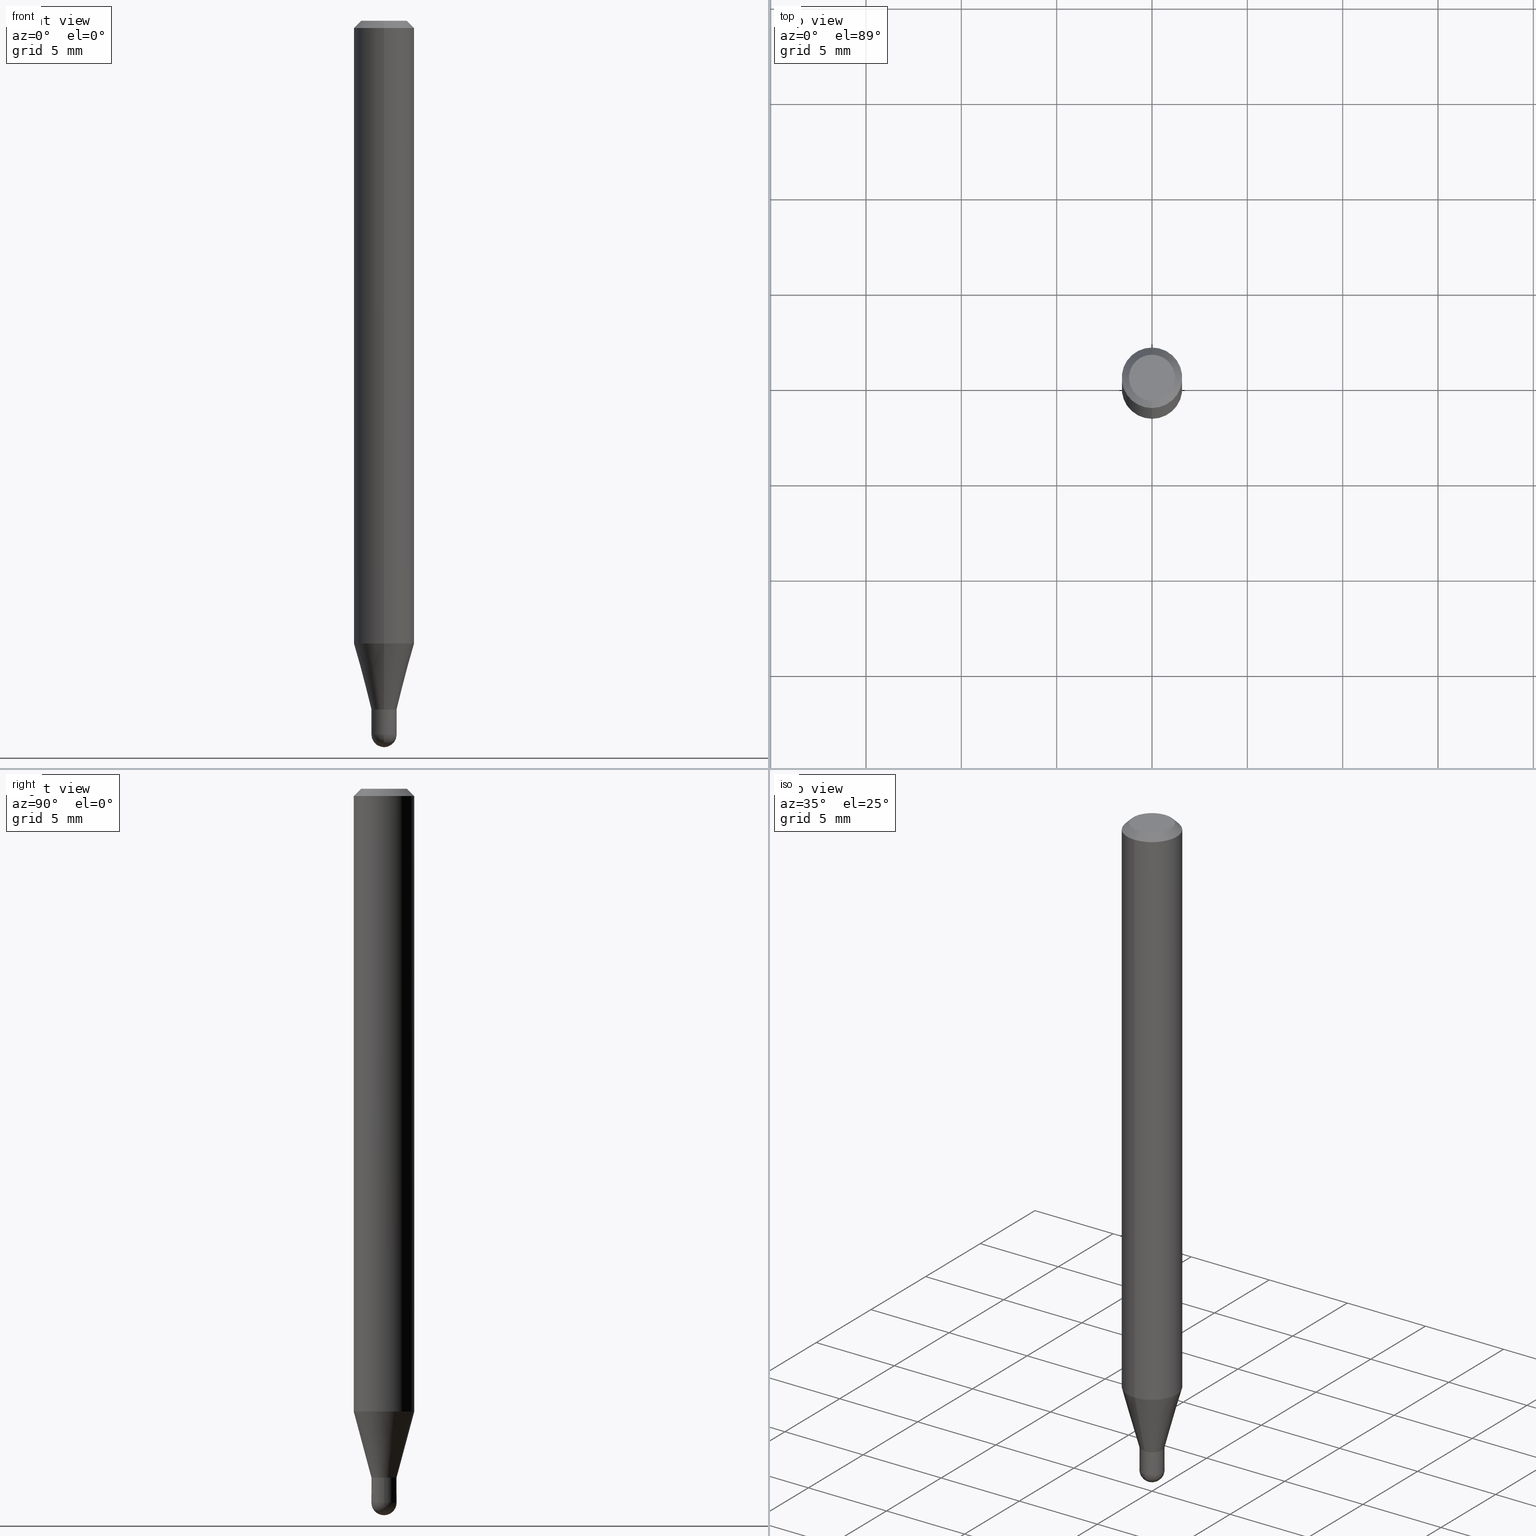
[diagram: canonical four-view strip — front | top / right | iso, engineering-drawing reading convention]
A machine part, canonical four-view strip (front | top / right | iso — engineering-drawing reading convention). The complete STEP part file that produces these views, byte-faithful:
ISO-10303-21;
HEADER;
FILE_DESCRIPTION (( 'STEP AP203' ),
    '1' );
FILE_NAME ('04364.STEP',
    '2024-03-08T18:54:05',
    ( '' ),
    ( '' ),
    'SwSTEP 2.0',
    'SolidWorks 2023',
    '' );
FILE_SCHEMA (( 'CONFIG_CONTROL_DESIGN' ));
ENDSEC;

DATA;
#1 = ORIENTED_EDGE ( 'NONE', *, *, #457, .T. ) ;
#2 = DIRECTION ( 'NONE',  ( -6.982962677686265922E-15, -1.000000000000000000, 0.000000000000000000 ) ) ;
#3 = DIRECTION ( 'NONE',  ( 1.000000000000000000, -6.982962677686258822E-15, 0.000000000000000000 ) ) ;
#4 = EDGE_LOOP ( 'NONE', ( #230, #385, #126, #81 ) ) ;
#5 = CIRCLE ( 'NONE', #405, 0.02600000000000019310 ) ;
#6 = EDGE_CURVE ( 'NONE', #105, #171, #96, .T. ) ;
#7 = VERTEX_POINT ( 'NONE', #259 ) ;
#8 = DIRECTION ( 'NONE',  ( 6.982962677686265922E-15, 1.000000000000000000, -3.483106191921935554E-15 ) ) ;
#9 = ORIENTED_EDGE ( 'NONE', *, *, #204, .F. ) ;
#10 = AXIS2_PLACEMENT_3D ( 'NONE', #379, #412, #192 ) ;
#11 = COORDINATED_UNIVERSAL_TIME_OFFSET ( 5, 0, .BEHIND. ) ;
#12 = VERTEX_POINT ( 'NONE', #66 ) ;
#13 = AXIS2_PLACEMENT_3D ( 'NONE', #509, #469, #164 ) ;
#14 = EDGE_CURVE ( 'NONE', #70, #63, #225, .T. ) ;
#15 = FACE_OUTER_BOUND ( 'NONE', #48, .T. ) ;
#16 = CALENDAR_DATE ( 2024, 8, 3 ) ;
#17 = ORIENTED_EDGE ( 'NONE', *, *, #35, .T. ) ;
#18 = DIRECTION ( 'NONE',  ( -2.445468806185136597E-29, 3.491481338843145583E-15, 1.000000000000000000 ) ) ;
#19 = SPHERICAL_SURFACE ( 'NONE', #481, 0.02599999999999997452 ) ;
#20 = EDGE_CURVE ( 'NONE', #416, #12, #100, .T. ) ;
#21 = LOCAL_TIME ( 13, 54, 5.000000000000000000, #184 ) ;
#22 = CIRCLE ( 'NONE', #226, 0.04749999999999999362 ) ;
#23 = DIRECTION ( 'NONE',  ( -2.445468490087946245E-29, 3.491481791512312778E-15, 1.000000000000000000 ) ) ;
#24 = DIMENSIONAL_EXPONENTS ( 1.000000000000000000, 0.000000000000000000, 0.000000000000000000, 0.000000000000000000, 0.000000000000000000, 0.000000000000000000, 0.000000000000000000 ) ;
#25 = CARTESIAN_POINT ( 'NONE',  ( 3.604621020316892110E-29, -5.146443493454796836E-15, -1.474000000000000199 ) ) ;
#26 = FACE_OUTER_BOUND ( 'NONE', #397, .T. ) ;
#27 = DIRECTION ( 'NONE',  ( 1.000000000000000000, -6.982962677686257244E-15, 0.000000000000000000 ) ) ;
#28 = AXIS2_PLACEMENT_3D ( 'NONE', #104, #216, #417 ) ;
#29 = CARTESIAN_POINT ( 'NONE',  ( -0.02600000000000000228, 1.847411112976260645E-16, -1.278923123466275736E-30 ) ) ;
#30 = CARTESIAN_POINT ( 'NONE',  ( 3.604621020316892110E-29, -5.146443493454796836E-15, -1.474000000000000199 ) ) ;
#31 = ORIENTED_EDGE ( 'NONE', *, *, #294, .T. ) ;
#32 = FACE_OUTER_BOUND ( 'NONE', #451, .T. ) ;
#33 = CIRCLE ( 'NONE', #367, 0.02600000000000000228 ) ;
#34 = DIRECTION ( 'NONE',  ( -6.982962677686265922E-15, -1.000000000000000000, 0.000000000000000000 ) ) ;
#35 = EDGE_CURVE ( 'NONE', #171, #178, #357, .T. ) ;
#36 = CARTESIAN_POINT ( 'NONE',  ( 3.144151605738781381E-16, 0.02599999999999522485, -1.421999999999999931 ) ) ;
#37 =( NAMED_UNIT ( * ) PLANE_ANGLE_UNIT ( ) SI_UNIT ( $, .RADIAN. ) );
#38 = PERSON ( 'UNSPECIFIED', 'UNSPECIFIED', 'UNSPECIFIED', ('UNSPECIFIED'), ('UNSPECIFIED'), ('UNSPECIFIED') ) ;
#39 = EDGE_CURVE ( 'NONE', #105, #350, #495, .T. ) ;
#40 = SECURITY_CLASSIFICATION ( '', '', #287 ) ;
#41 = CARTESIAN_POINT ( 'NONE',  ( 3.477456642395264859E-29, -4.964886463834953365E-15, -1.421999999999999931 ) ) ;
#42 = VECTOR ( 'NONE', #505, 39.37007874015748143 ) ;
#43 = ORIENTED_EDGE ( 'NONE', *, *, #167, .T. ) ;
#44 = CIRCLE ( 'NONE', #101, 0.02600000000000000228 ) ;
#45 = ORIENTED_EDGE ( 'NONE', *, *, #72, .F. ) ;
#46 = DIRECTION ( 'NONE',  ( -1.000000000000000000, 6.982962677686265922E-15, -4.876176775795935793E-29 ) ) ;
#47 = DIRECTION ( 'NONE',  ( 1.000000000000000000, 0.000000000000000000, 0.000000000000000000 ) ) ;
#48 = EDGE_LOOP ( 'NONE', ( #499, #359 ) ) ;
#49 = ORIENTED_EDGE ( 'NONE', *, *, #145, .F. ) ;
#50 = AXIS2_PLACEMENT_3D ( 'NONE', #25, #303, #458 ) ;
#51 = CALENDAR_DATE ( 2024, 8, 3 ) ;
#52 = EDGE_LOOP ( 'NONE', ( #152, #355, #49, #455 ) ) ;
#53 = CIRCLE ( 'NONE', #173, 0.02599999999999999534 ) ;
#54 = CARTESIAN_POINT ( 'NONE',  ( 3.477456642395264859E-29, -4.964886463834953365E-15, -1.421999999999999931 ) ) ;
#55 = ADVANCED_FACE ( 'NONE', ( #107 ), #377, .F. ) ;
#56 = DIRECTION ( 'NONE',  ( -2.445468490087946806E-29, 3.491481791512312384E-15, 1.000000000000000000 ) ) ;
#57 = FACE_OUTER_BOUND ( 'NONE', #304, .T. ) ;
#58 = DIRECTION ( 'NONE',  ( -2.445468490087946806E-29, 3.491481791512312384E-15, 1.000000000000000000 ) ) ;
#59 = APPROVAL_ROLE ( '' ) ;
#60 = AXIS2_PLACEMENT_3D ( 'NONE', #324, #330, #281 ) ;
#61 = CARTESIAN_POINT ( 'NONE',  ( 3.602397587965025364E-29, -5.149627575132580366E-15, -1.474000000000000199 ) ) ;
#62 = DIRECTION ( 'NONE',  ( 1.839019923739649619E-15, 0.2588190451025318972, 0.9659258262890650926 ) ) ;
#63 = VERTEX_POINT ( 'NONE', #77 ) ;
#64 = EDGE_CURVE ( 'NONE', #178, #483, #462, .T. ) ;
#65 = CARTESIAN_POINT ( 'NONE',  ( 3.477456192905060686E-29, -4.964887107530508633E-15, -1.421999999999999931 ) ) ;
#66 = CARTESIAN_POINT ( 'NONE',  ( -1.815570296198068135E-16, -0.02600000000000513706, -1.474000000000000199 ) ) ;
#67 = CC_DESIGN_APPROVAL ( #155, ( #40 ) ) ;
#68 = AXIS2_PLACEMENT_3D ( 'NONE', #302, #459, #267 ) ;
#69 = CIRCLE ( 'NONE', #191, 0.02549999999999999489 ) ;
#70 = VERTEX_POINT ( 'NONE', #235 ) ;
#71 = ADVANCED_FACE ( 'NONE', ( #228 ), #197, .T. ) ;
#72 = EDGE_CURVE ( 'NONE', #326, #440, #277, .T. ) ;
#73 = CARTESIAN_POINT ( 'NONE',  ( 0.02600000000000000228, -1.815570296198429532E-16, 1.267805961706943404E-30 ) ) ;
#74 = FACE_OUTER_BOUND ( 'NONE', #52, .T. ) ;
#75 = VECTOR ( 'NONE', #424, 39.37007874015748143 ) ;
#76 = DIRECTION ( 'NONE',  ( 1.000000000000000000, -6.982962677686265922E-15, 4.883557194083112901E-29 ) ) ;
#77 = CARTESIAN_POINT ( 'NONE',  ( -0.02599999999999999534, -4.870923867347250071E-15, -1.421999999999999931 ) ) ;
#78 = ADVANCED_FACE ( 'NONE', ( #74 ), #422, .T. ) ;
#79 = DIRECTION ( 'NONE',  ( -2.445468490087946806E-29, 3.491481791512312778E-15, 1.000000000000000000 ) ) ;
#80 = VERTEX_POINT ( 'NONE', #36 ) ;
#81 = ORIENTED_EDGE ( 'NONE', *, *, #257, .F. ) ;
#82 = VECTOR ( 'NONE', #62, 39.37007874015748854 ) ;
#83 = PLANE ( 'NONE',  #240 ) ;
#84 = APPLICATION_PROTOCOL_DEFINITION ( 'international standard', 'config_control_design', 1994, #206 ) ;
#85 = EDGE_LOOP ( 'NONE', ( #470, #335, #214, #320 ) ) ;
#86 = DIRECTION ( 'NONE',  ( -6.982962677686265922E-15, -1.000000000000000000, 3.491481791512312384E-15 ) ) ;
#87 = EDGE_CURVE ( 'NONE', #165, #342, #472, .T. ) ;
#88 = VERTEX_POINT ( 'NONE', #278 ) ;
#89 = PERSON_AND_ORGANIZATION ( #38, #418 ) ;
#90 = EDGE_LOOP ( 'NONE', ( #480, #282 ) ) ;
#91 = AXIS2_PLACEMENT_3D ( 'NONE', #428, #202, #229 ) ;
#92 = PERSON_AND_ORGANIZATION_ROLE ( 'design_owner' ) ;
#93 = EDGE_CURVE ( 'NONE', #80, #362, #346, .T. ) ;
#94 = DIRECTION ( 'NONE',  ( 6.982962677686265922E-15, 1.000000000000000000, -3.483106191921935554E-15 ) ) ;
#95 = FACE_OUTER_BOUND ( 'NONE', #292, .T. ) ;
#96 = LINE ( 'NONE', #186, #283 ) ;
#97 = DATE_AND_TIME ( #51, #445 ) ;
#98 = DIRECTION ( 'NONE',  ( -6.982962677686265922E-15, -1.000000000000000000, 3.491481791512312384E-15 ) ) ;
#99 = APPROVAL_PERSON_ORGANIZATION ( #188, #437, #364 ) ;
#100 = CIRCLE ( 'NONE', #68, 0.02599999999999997452 ) ;
#101 = AXIS2_PLACEMENT_3D ( 'NONE', #30, #306, #195 ) ;
#102 = CARTESIAN_POINT ( 'NONE',  ( 3.604621020316892110E-29, -5.146443493454796836E-15, -1.474000000000000199 ) ) ;
#103 = ORIENTED_EDGE ( 'NONE', *, *, #131, .F. ) ;
#104 = CARTESIAN_POINT ( 'NONE',  ( 3.477456192905060686E-29, -4.964887107530509422E-15, -1.422000000000000375 ) ) ;
#105 = VERTEX_POINT ( 'NONE', #392 ) ;
#106 = CARTESIAN_POINT ( 'NONE',  ( -1.780655482809649650E-16, -0.02550000000000495967, -1.422000000000000375 ) ) ;
#107 = FACE_OUTER_BOUND ( 'NONE', #316, .T. ) ;
#108 = CIRCLE ( 'NONE', #163, 0.02599999999999999534 ) ;
#109 = DIRECTION ( 'NONE',  ( -2.445468806185136877E-29, 3.491481338843145188E-15, 1.000000000000000000 ) ) ;
#110 = ORIENTED_EDGE ( 'NONE', *, *, #122, .F. ) ;
#111 = CC_DESIGN_PERSON_AND_ORGANIZATION_ASSIGNMENT ( #369, #285, ( #40 ) ) ;
#112 = DIRECTION ( 'NONE',  ( -2.445468806185136597E-29, 3.491481338843145583E-15, 1.000000000000000000 ) ) ;
#113 = CARTESIAN_POINT ( 'NONE',  ( 3.316907271900976096E-16, 0.04749999999999999362, -1.985954913721402075E-16 ) ) ;
#114 =( CONVERSION_BASED_UNIT ( 'INCH', #119 ) LENGTH_UNIT ( ) NAMED_UNIT ( #24 ) );
#115 = DIRECTION ( 'NONE',  ( -4.851104656540964275E-15, -0.7071067811865500152, -0.7071067811865450192 ) ) ;
#116 = VECTOR ( 'NONE', #109, 39.37007874015748143 ) ;
#117 = ADVANCED_FACE ( 'NONE', ( #32 ), #352, .T. ) ;
#118 = CARTESIAN_POINT ( 'NONE',  ( -4.364351673553916201E-16, -0.06250000000000000000, 2.182176119695195240E-16 ) ) ;
#119 = LENGTH_MEASURE_WITH_UNIT ( LENGTH_MEASURE( 0.02539999999999999897 ), #393 );
#120 = ORIENTED_EDGE ( 'NONE', *, *, #239, .T. ) ;
#121 = DIRECTION ( 'NONE',  ( -2.445468490087946806E-29, 3.491481791512312384E-15, 1.000000000000000000 ) ) ;
#122 = EDGE_CURVE ( 'NONE', #342, #63, #53, .T. ) ;
#123 = ORIENTED_EDGE ( 'NONE', *, *, #454, .T. ) ;
#124 = CONICAL_SURFACE ( 'NONE', #413, 0.02600000000000018963, 0.2617993877991575125 ) ;
#125 = CARTESIAN_POINT ( 'NONE',  ( 3.477456192905060686E-29, -4.964887107530509422E-15, -1.422000000000000375 ) ) ;
#126 = ORIENTED_EDGE ( 'NONE', *, *, #6, .T. ) ;
#127 = EDGE_CURVE ( 'NONE', #171, #440, #387, .T. ) ;
#128 = DIRECTION ( 'NONE',  ( 4.937700262164548042E-15, 0.7071067811865451302, -0.7071067811865499042 ) ) ;
#129 = PERSON_AND_ORGANIZATION_ROLE ( 'creator' ) ;
#130 = VERTEX_POINT ( 'NONE', #203 ) ;
#131 = EDGE_CURVE ( 'NONE', #80, #105, #271, .T. ) ;
#132 = DATE_AND_TIME ( #16, #307 ) ;
#133 = ORIENTED_EDGE ( 'NONE', *, *, #14, .F. ) ;
#134 = CARTESIAN_POINT ( 'NONE',  ( 4.364351673553919652E-16, 0.06249999999999995143, -0.01500000000000028394 ) ) ;
#135 = AXIS2_PLACEMENT_3D ( 'NONE', #125, #434, #160 ) ;
#136 = EDGE_CURVE ( 'NONE', #326, #130, #22, .T. ) ;
#137 = VECTOR ( 'NONE', #149, 39.37007874015748143 ) ;
#138 = DIRECTION ( 'NONE',  ( -6.982962677686265922E-15, -1.000000000000000000, 3.491481791512312778E-15 ) ) ;
#139 = MANIFOLD_SOLID_BREP ( 'Body-Move/Copy2[2]', #288 ) ;
#140 = ORIENTED_EDGE ( 'NONE', *, *, #72, .T. ) ;
#141 = DATE_AND_TIME ( #328, #21 ) ;
#142 = CARTESIAN_POINT ( 'NONE',  ( 0.000000000000000000, 0.000000000000000000, 0.000000000000000000 ) ) ;
#143 = CARTESIAN_POINT ( 'NONE',  ( 0.000000000000000000, 0.000000000000000000, 0.000000000000000000 ) ) ;
#144 = COORDINATED_UNIVERSAL_TIME_OFFSET ( 5, 0, .BEHIND. ) ;
#145 = EDGE_CURVE ( 'NONE', #165, #88, #44, .T. ) ;
#146 = FACE_OUTER_BOUND ( 'NONE', #4, .T. ) ;
#147 = ORIENTED_EDGE ( 'NONE', *, *, #274, .F. ) ;
#148 = CC_DESIGN_APPROVAL ( #437, ( #489 ) ) ;
#149 = DIRECTION ( 'NONE',  ( 5.024295867788190974E-15, 0.7071067811865681119, 0.7071067811865270336 ) ) ;
#150 = DIRECTION ( 'NONE',  ( -2.445468806185136877E-29, 3.491481338843145188E-15, 1.000000000000000000 ) ) ;
#151 = CARTESIAN_POINT ( 'NONE',  ( 0.000000000000000000, 0.000000000000000000, 0.000000000000000000 ) ) ;
#152 = ORIENTED_EDGE ( 'NONE', *, *, #20, .F. ) ;
#153 = EDGE_CURVE ( 'NONE', #440, #483, #290, .T. ) ;
#154 = CARTESIAN_POINT ( 'NONE',  ( 1.847411112976273710E-16, 0.02600000000000018963, -9.077852657932078195E-17 ) ) ;
#155 = APPROVAL ( #248, 'UNSPECIFIED' ) ;
#156 = EDGE_LOOP ( 'NONE', ( #466, #222, #431, #299 ) ) ;
#157 = CONICAL_SURFACE ( 'NONE', #398, 0.06250000000000000000, 0.7853981633974483900 ) ;
#158 = CARTESIAN_POINT ( 'NONE',  ( 3.668202735131936832E-31, -5.237222687268491576E-17, -0.01500000000000006710 ) ) ;
#159 = CARTESIAN_POINT ( 'NONE',  ( 1.601787058865817249E-45, -2.286927994606437826E-31, -6.550021255061077955E-17 ) ) ;
#160 = DIRECTION ( 'NONE',  ( -6.982962677686265922E-15, -1.000000000000000000, 0.000000000000000000 ) ) ;
#161 = CC_DESIGN_DATE_AND_TIME_ASSIGNMENT ( #260, #442, ( #40 ) ) ;
#162 = AXIS2_PLACEMENT_3D ( 'NONE', #236, #242, #47 ) ;
#163 = AXIS2_PLACEMENT_3D ( 'NONE', #54, #488, #371 ) ;
#164 = DIRECTION ( 'NONE',  ( -6.982962677686265922E-15, -1.000000000000000000, 0.000000000000000000 ) ) ;
#165 = VERTEX_POINT ( 'NONE', #199 ) ;
#166 = CARTESIAN_POINT ( 'NONE',  ( 3.477456192905060686E-29, -4.964887107530509422E-15, -1.422000000000000375 ) ) ;
#167 = EDGE_CURVE ( 'NONE', #362, #350, #5, .T. ) ;
#168 = ORIENTED_EDGE ( 'NONE', *, *, #87, .T. ) ;
#169 = CARTESIAN_POINT ( 'NONE',  ( 0.000000000000000000, 0.000000000000000000, 0.000000000000000000 ) ) ;
#170 = CC_DESIGN_PERSON_AND_ORGANIZATION_ASSIGNMENT ( #378, #490, ( #194 ) ) ;
#171 = VERTEX_POINT ( 'NONE', #512 ) ;
#172 = DIRECTION ( 'NONE',  ( 1.000000000000000000, -6.982962677686257244E-15, 0.000000000000000000 ) ) ;
#173 = AXIS2_PLACEMENT_3D ( 'NONE', #41, #112, #3 ) ;
#174 = PERSON_AND_ORGANIZATION_ROLE ( 'design_supplier' ) ;
#175 = ORIENTED_EDGE ( 'NONE', *, *, #493, .F. ) ;
#176 = DIRECTION ( 'NONE',  ( 2.445468490087946806E-29, -3.491481791512312384E-15, -1.000000000000000000 ) ) ;
#177 = APPLICATION_PROTOCOL_DEFINITION ( 'international standard', 'config_control_design', 1994, #250 ) ;
#178 = VERTEX_POINT ( 'NONE', #315 ) ;
#179 = FACE_OUTER_BOUND ( 'NONE', #243, .T. ) ;
#180 = ADVANCED_FACE ( 'NONE', ( #313 ), #468, .F. ) ;
#181 = FACE_OUTER_BOUND ( 'NONE', #427, .T. ) ;
#182 = CIRCLE ( 'NONE', #356, 0.02599999999999997452 ) ;
#183 = AXIS2_PLACEMENT_3D ( 'NONE', #402, #484, #94 ) ;
#184 = COORDINATED_UNIVERSAL_TIME_OFFSET ( 5, 0, .BEHIND. ) ;
#185 = CYLINDRICAL_SURFACE ( 'NONE', #433, 0.06250000000000000000 ) ;
#186 = CARTESIAN_POINT ( 'NONE',  ( -1.815570296198094513E-16, -0.02600000000000515440, -1.421999999999999931 ) ) ;
#187 = ADVANCED_BREP_SHAPE_REPRESENTATION ( '04364', ( #305, #139, #162 ), #500 ) ;
#188 = PERSON_AND_ORGANIZATION ( #38, #418 ) ;
#189 = CARTESIAN_POINT ( 'NONE',  ( 3.602397587965025364E-29, -5.149627575132580366E-15, -1.474000000000000199 ) ) ;
#190 = CYLINDRICAL_SURFACE ( 'NONE', #448, 0.02600000000000018963 ) ;
#191 = AXIS2_PLACEMENT_3D ( 'NONE', #166, #319, #368 ) ;
#192 = DIRECTION ( 'NONE',  ( -6.982962677686265922E-15, -1.000000000000000000, 3.483106191921935554E-15 ) ) ;
#193 = CARTESIAN_POINT ( 'NONE',  ( 3.144334831059003707E-29, -4.489277965984193733E-15, -1.285780145523741202 ) ) ;
#194 = PRODUCT_DEFINITION ( 'UNKNOWN', '', #489, #343 ) ;
#195 = DIRECTION ( 'NONE',  ( 1.000000000000000000, -6.982962677686257244E-15, 0.000000000000000000 ) ) ;
#196 = CC_DESIGN_SECURITY_CLASSIFICATION ( #40, ( #489 ) ) ;
#197 = CONICAL_SURFACE ( 'NONE', #322, 0.02549999999999999489, 0.7853981633974739252 ) ;
#198 = AXIS2_PLACEMENT_3D ( 'NONE', #438, #289, #449 ) ;
#199 = CARTESIAN_POINT ( 'NONE',  ( 0.02600000000000000228, -5.237222008264718177E-15, -1.474000000000000199 ) ) ;
#200 = ORIENTED_EDGE ( 'NONE', *, *, #39, .T. ) ;
#201 = DIRECTION ( 'NONE',  ( -6.982962677686265922E-15, -1.000000000000000000, 3.491481791512312384E-15 ) ) ;
#202 = DIRECTION ( 'NONE',  ( -2.445468806185136597E-29, 3.491481338843145583E-15, 1.000000000000000000 ) ) ;
#203 = CARTESIAN_POINT ( 'NONE',  ( 3.840629472727447874E-16, 0.04749999999999999362, -2.313455976474456035E-16 ) ) ;
#204 = EDGE_CURVE ( 'NONE', #63, #342, #108, .T. ) ;
#205 = ORIENTED_EDGE ( 'NONE', *, *, #6, .F. ) ;
#206 = APPLICATION_CONTEXT ( 'configuration controlled 3d designs of mechanical parts and assemblies' ) ;
#207 = EDGE_CURVE ( 'NONE', #12, #165, #436, .T. ) ;
#208 = MECHANICAL_CONTEXT ( 'NONE', #206, 'mechanical' ) ;
#209 = ORIENTED_EDGE ( 'NONE', *, *, #460, .T. ) ;
#210 = ORIENTED_EDGE ( 'NONE', *, *, #506, .F. ) ;
#211 = CARTESIAN_POINT ( 'NONE',  ( 3.604621020316892110E-29, -5.146443493454796836E-15, -1.474000000000000199 ) ) ;
#212 = CONICAL_SURFACE ( 'NONE', #502, 0.02600000000000018963, 0.2617993877991575125 ) ;
#213 = CALENDAR_DATE ( 2024, 8, 3 ) ;
#214 = ORIENTED_EDGE ( 'NONE', *, *, #239, .F. ) ;
#215 = CARTESIAN_POINT ( 'NONE',  ( 1.847411112976621549E-16, 0.02599999999999522485, -1.421999999999999931 ) ) ;
#216 = DIRECTION ( 'NONE',  ( -2.445468490087946806E-29, 3.491481791512312384E-15, 1.000000000000000000 ) ) ;
#217 = AXIS2_PLACEMENT_3D ( 'NONE', #151, #494, #408 ) ;
#218 = APPROVAL_STATUS ( 'not_yet_approved' ) ;
#219 = DIRECTION ( 'NONE',  ( 1.000000000000000000, -7.105427357601001070E-15, 4.926315508542082329E-29 ) ) ;
#220 = ADVANCED_FACE ( 'NONE', ( #179 ), #157, .T. ) ;
#221 = LINE ( 'NONE', #479, #384 ) ;
#222 = ORIENTED_EDGE ( 'NONE', *, *, #506, .T. ) ;
#223 = UNCERTAINTY_MEASURE_WITH_UNIT (LENGTH_MEASURE( 1.000000000000000082E-05 ), #114, 'distance_accuracy_value', 'NONE');
#224 = DIRECTION ( 'NONE',  ( -6.982962677686265922E-15, -1.000000000000000000, 0.000000000000000000 ) ) ;
#225 = LINE ( 'NONE', #29, #231 ) ;
#226 = AXIS2_PLACEMENT_3D ( 'NONE', #159, #507, #317 ) ;
#227 = CIRCLE ( 'NONE', #50, 0.02600000000000000228 ) ;
#228 = FACE_OUTER_BOUND ( 'NONE', #85, .T. ) ;
#229 = DIRECTION ( 'NONE',  ( 1.000000000000000000, -6.982962677686266711E-15, 4.876176775795935793E-29 ) ) ;
#230 = ORIENTED_EDGE ( 'NONE', *, *, #454, .F. ) ;
#231 = VECTOR ( 'NONE', #150, 39.37007874015748143 ) ;
#232 = DIRECTION ( 'NONE',  ( -6.982962677686265922E-15, -1.000000000000000000, 0.000000000000000000 ) ) ;
#233 = CARTESIAN_POINT ( 'NONE',  ( -4.287811248607203282E-16, -0.06250000000000005551, -0.01499999999999984852 ) ) ;
#234 = DIRECTION ( 'NONE',  ( -4.937700262164674260E-15, -0.7071067811865632269, 0.7071067811865319186 ) ) ;
#235 = CARTESIAN_POINT ( 'NONE',  ( -0.02600000000000000228, -4.870923867347250071E-15, -1.474000000000000199 ) ) ;
#236 = CARTESIAN_POINT ( 'NONE',  ( 0.000000000000000000, 0.000000000000000000, 0.000000000000000000 ) ) ;
#237 = EDGE_LOOP ( 'NONE', ( #103, #339, #43, #400 ) ) ;
#238 = APPROVAL_PERSON_ORGANIZATION ( #492, #420, #59 ) ;
#239 = EDGE_CURVE ( 'NONE', #350, #362, #323, .T. ) ;
#240 = AXIS2_PLACEMENT_3D ( 'NONE', #241, #441, #46 ) ;
#241 = CARTESIAN_POINT ( 'NONE',  ( 1.815570296198776877E-16, 0.02599999999999503403, -1.421999999999999931 ) ) ;
#242 = DIRECTION ( 'NONE',  ( 0.000000000000000000, 0.000000000000000000, 1.000000000000000000 ) ) ;
#243 = EDGE_LOOP ( 'NONE', ( #45, #147, #487, #1 ) ) ;
#244 = CARTESIAN_POINT ( 'NONE',  ( -3.773273898774340269E-16, -0.04749999999999999362, 1.003451725462240444E-16 ) ) ;
#245 = PERSON_AND_ORGANIZATION ( #38, #418 ) ;
#246 = ORIENTED_EDGE ( 'NONE', *, *, #279, .F. ) ;
#247 = CYLINDRICAL_SURFACE ( 'NONE', #419, 0.06250000000000000000 ) ;
#248 = APPROVAL_STATUS ( 'not_yet_approved' ) ;
#249 = ORIENTED_EDGE ( 'NONE', *, *, #35, .F. ) ;
#250 = APPLICATION_CONTEXT ( 'configuration controlled 3d designs of mechanical parts and assemblies' ) ;
#251 = LOCAL_TIME ( 13, 54, 5.000000000000000000, #452 ) ;
#252 = AXIS2_PLACEMENT_3D ( 'NONE', #407, #56, #358 ) ;
#253 = AXIS2_PLACEMENT_3D ( 'NONE', #113, #276, #426 ) ;
#254 = SHAPE_DEFINITION_REPRESENTATION ( #345, #187 ) ;
#255 = FACE_OUTER_BOUND ( 'NONE', #329, .T. ) ;
#256 = EDGE_CURVE ( 'NONE', #130, #483, #327, .T. ) ;
#257 = EDGE_CURVE ( 'NONE', #178, #171, #309, .T. ) ;
#258 = CARTESIAN_POINT ( 'NONE',  ( 4.440892098500941706E-16, 0.06249999999999995143, -0.01500000000000028394 ) ) ;
#259 = CARTESIAN_POINT ( 'NONE',  ( 1.829647544582612126E-16, 0.02549999999999503011, -1.422000000000000375 ) ) ;
#260 = DATE_AND_TIME ( #213, #251 ) ;
#261 = FACE_OUTER_BOUND ( 'NONE', #156, .T. ) ;
#262 = DIRECTION ( 'NONE',  ( -6.982962677686265922E-15, -1.000000000000000000, 4.370956789862821150E-15 ) ) ;
#263 = AXIS2_PLACEMENT_3D ( 'NONE', #272, #76, #34 ) ;
#264 = CONICAL_SURFACE ( 'NONE', #183, 0.06250000000000000000, 0.7853981633974483900 ) ;
#265 = DIRECTION ( 'NONE',  ( -2.445468490087946806E-29, 3.491481791512312384E-15, 1.000000000000000000 ) ) ;
#266 = CYLINDRICAL_SURFACE ( 'NONE', #217, 0.02600000000000000228 ) ;
#267 = DIRECTION ( 'NONE',  ( -6.982962677686265922E-15, -1.000000000000000000, 0.000000000000000000 ) ) ;
#268 = ADVANCED_FACE ( 'NONE', ( #255 ), #264, .T. ) ;
#269 = FACE_OUTER_BOUND ( 'NONE', #474, .T. ) ;
#270 = AXIS2_PLACEMENT_3D ( 'NONE', #193, #58, #262 ) ;
#271 = CIRCLE ( 'NONE', #13, 0.02600000000000018963 ) ;
#272 = CARTESIAN_POINT ( 'NONE',  ( 3.602397587965025364E-29, -5.149627575132580366E-15, -1.474000000000000199 ) ) ;
#273 = ORIENTED_EDGE ( 'NONE', *, *, #127, .T. ) ;
#274 = EDGE_CURVE ( 'NONE', #130, #326, #389, .T. ) ;
#275 = DIRECTION ( 'NONE',  ( -2.445468490087946806E-29, 3.491481791512312384E-15, 1.000000000000000000 ) ) ;
#276 = DIRECTION ( 'NONE',  ( 2.445468490087946245E-29, -3.491481791512312778E-15, -1.000000000000000000 ) ) ;
#277 = LINE ( 'NONE', #233, #411 ) ;
#278 = CARTESIAN_POINT ( 'NONE',  ( 1.847411112976619577E-16, 0.02599999999999483974, -1.474000000000000199 ) ) ;
#279 = EDGE_CURVE ( 'NONE', #464, #7, #69, .T. ) ;
#280 = ORIENTED_EDGE ( 'NONE', *, *, #145, .T. ) ;
#281 = DIRECTION ( 'NONE',  ( -6.982962677686265922E-15, -1.000000000000000000, 0.000000000000000000 ) ) ;
#282 = ORIENTED_EDGE ( 'NONE', *, *, #136, .T. ) ;
#283 = VECTOR ( 'NONE', #409, 39.37007874015748854 ) ;
#284 = ORIENTED_EDGE ( 'NONE', *, *, #153, .T. ) ;
#285 = PERSON_AND_ORGANIZATION_ROLE ( 'classification_officer' ) ;
#286 = ORIENTED_EDGE ( 'NONE', *, *, #14, .T. ) ;
#287 = SECURITY_CLASSIFICATION_LEVEL ( 'unclassified' ) ;
#288 = CLOSED_SHELL ( 'NONE', ( #444, #71, #268, #485, #373, #399, #312, #220, #180, #473, #344, #55 ) ) ;
#289 = DIRECTION ( 'NONE',  ( -2.445468490087946806E-29, 3.491481791512312384E-15, 1.000000000000000000 ) ) ;
#290 = CIRCLE ( 'NONE', #332, 0.06250000000000000000 ) ;
#291 = DIRECTION ( 'NONE',  ( -2.445468490087946806E-29, 3.491481791512312384E-15, 1.000000000000000000 ) ) ;
#292 = EDGE_LOOP ( 'NONE', ( #175, #503, #311, #314 ) ) ;
#293 = APPROVAL_DATE_TIME ( #336, #437 ) ;
#294 = EDGE_CURVE ( 'NONE', #105, #80, #386, .T. ) ;
#295 = CARTESIAN_POINT ( 'NONE',  ( 3.477456192905060686E-29, -4.964887107530509422E-15, -1.422000000000000375 ) ) ;
#296 = DIRECTION ( 'NONE',  ( -2.445468490087946806E-29, 3.491481791512312384E-15, 1.000000000000000000 ) ) ;
#297 = DIRECTION ( 'NONE',  ( 7.105427357601001070E-15, 1.000000000000000000, 0.000000000000000000 ) ) ;
#298 = CIRCLE ( 'NONE', #135, 0.02549999999999999489 ) ;
#299 = ORIENTED_EDGE ( 'NONE', *, *, #167, .F. ) ;
#300 = AXIS2_PLACEMENT_3D ( 'NONE', #211, #18, #172 ) ;
#301 = LINE ( 'NONE', #450, #137 ) ;
#302 = CARTESIAN_POINT ( 'NONE',  ( 3.602397587965025364E-29, -5.149627575132580366E-15, -1.474000000000000199 ) ) ;
#303 = DIRECTION ( 'NONE',  ( -2.445468806185136597E-29, 3.491481338843145583E-15, 1.000000000000000000 ) ) ;
#304 = EDGE_LOOP ( 'NONE', ( #17, #429, #370, #351 ) ) ;
#305 = MANIFOLD_SOLID_BREP ( 'Body-Move/Copy2[1]', #471 ) ;
#306 = DIRECTION ( 'NONE',  ( -2.445468806185136597E-29, 3.491481338843145583E-15, 1.000000000000000000 ) ) ;
#307 = LOCAL_TIME ( 13, 54, 5.000000000000000000, #410 ) ;
#308 = ADVANCED_FACE ( 'NONE', ( #15 ), #83, .F. ) ;
#309 = CIRCLE ( 'NONE', #198, 0.06250000000000000000 ) ;
#310 = DIRECTION ( 'NONE',  ( -2.445468490087946806E-29, 3.491481791512312384E-15, 1.000000000000000000 ) ) ;
#311 = ORIENTED_EDGE ( 'NONE', *, *, #460, .F. ) ;
#312 = ADVANCED_FACE ( 'NONE', ( #360 ), #247, .T. ) ;
#313 = FACE_OUTER_BOUND ( 'NONE', #90, .T. ) ;
#314 = ORIENTED_EDGE ( 'NONE', *, *, #391, .F. ) ;
#315 = CARTESIAN_POINT ( 'NONE',  ( 4.440892098500937762E-16, 0.06249999999999548972, -1.285780145523741425 ) ) ;
#316 = EDGE_LOOP ( 'NONE', ( #404, #423, #200, #120 ) ) ;
#317 = DIRECTION ( 'NONE',  ( -6.982962677686266711E-15, -1.000000000000000000, 3.491481791512312778E-15 ) ) ;
#318 = CC_DESIGN_PERSON_AND_ORGANIZATION_ASSIGNMENT ( #245, #129, ( #489 ) ) ;
#319 = DIRECTION ( 'NONE',  ( -2.445468490087946806E-29, 3.491481791512312384E-15, 1.000000000000000000 ) ) ;
#320 = ORIENTED_EDGE ( 'NONE', *, *, #497, .F. ) ;
#321 = ORIENTED_EDGE ( 'NONE', *, *, #457, .F. ) ;
#322 = AXIS2_PLACEMENT_3D ( 'NONE', #430, #275, #232 ) ;
#323 = CIRCLE ( 'NONE', #60, 0.02600000000000019310 ) ;
#324 = CARTESIAN_POINT ( 'NONE',  ( 3.476233458660016976E-29, -4.963141366634752681E-15, -1.421500000000000208 ) ) ;
#325 = PERSON_AND_ORGANIZATION ( #38, #418 ) ;
#326 = VERTEX_POINT ( 'NONE', #244 ) ;
#327 = LINE ( 'NONE', #134, #376 ) ;
#328 = CALENDAR_DATE ( 2024, 8, 3 ) ;
#329 = EDGE_LOOP ( 'NONE', ( #476, #140, #284, #435 ) ) ;
#330 = DIRECTION ( 'NONE',  ( -2.445468490087946806E-29, 3.491481791512312384E-15, 1.000000000000000000 ) ) ;
#331 = CARTESIAN_POINT ( 'NONE',  ( 3.477456192905060686E-29, -4.964887107530508633E-15, -1.421999999999999931 ) ) ;
#332 = AXIS2_PLACEMENT_3D ( 'NONE', #158, #310, #465 ) ;
#333 = DATE_TIME_ROLE ( 'creation_date' ) ;
#334 = CARTESIAN_POINT ( 'NONE',  ( 0.02599999999999999534, -5.146443493454796047E-15, -1.421999999999999931 ) ) ;
#335 = ORIENTED_EDGE ( 'NONE', *, *, #361, .T. ) ;
#336 = DATE_AND_TIME ( #439, #363 ) ;
#337 = DIRECTION ( 'NONE',  ( -2.445468490087946806E-29, 3.491481791512312384E-15, 1.000000000000000000 ) ) ;
#338 = DIRECTION ( 'NONE',  ( -2.445468806185136597E-29, 3.491481338843145583E-15, 1.000000000000000000 ) ) ;
#339 = ORIENTED_EDGE ( 'NONE', *, *, #93, .T. ) ;
#340 = DIRECTION ( 'NONE',  ( -2.445468490087946806E-29, 3.491481791512312384E-15, 1.000000000000000000 ) ) ;
#341 = CARTESIAN_POINT ( 'NONE',  ( -1.815570296198442351E-16, -0.02600000000000018963, 9.077852657932078195E-17 ) ) ;
#342 = VERTEX_POINT ( 'NONE', #334 ) ;
#343 = DESIGN_CONTEXT ( 'detailed design', #250, 'design' ) ;
#344 = ADVANCED_FACE ( 'NONE', ( #261 ), #348, .T. ) ;
#345 = PRODUCT_DEFINITION_SHAPE ( 'NONE', 'NONE',  #194 ) ;
#346 = LINE ( 'NONE', #154, #447 ) ;
#347 = AXIS2_PLACEMENT_3D ( 'NONE', #143, #296, #201 ) ;
#348 = CONICAL_SURFACE ( 'NONE', #28, 0.02549999999999999489, 0.7853981633974739252 ) ;
#349 = DIRECTION ( 'NONE',  ( -2.445468490087946806E-29, 3.491481791512312384E-15, 1.000000000000000000 ) ) ;
#350 = VERTEX_POINT ( 'NONE', #456 ) ;
#351 = ORIENTED_EDGE ( 'NONE', *, *, #127, .F. ) ;
#352 = CYLINDRICAL_SURFACE ( 'NONE', #91, 0.02600000000000000228 ) ;
#353 = ADVANCED_FACE ( 'NONE', ( #26 ), #266, .T. ) ;
#354 = CARTESIAN_POINT ( 'NONE',  ( 4.440892098500625669E-16, 0.06250000000000000000, -2.182176119695195240E-16 ) ) ;
#355 = ORIENTED_EDGE ( 'NONE', *, *, #493, .T. ) ;
#356 = AXIS2_PLACEMENT_3D ( 'NONE', #61, #219, #297 ) ;
#357 = CIRCLE ( 'NONE', #270, 0.06250000000000000000 ) ;
#358 = DIRECTION ( 'NONE',  ( -6.982962677686266711E-15, -1.000000000000000000, 3.491481791512312778E-15 ) ) ;
#359 = ORIENTED_EDGE ( 'NONE', *, *, #204, .T. ) ;
#360 = FACE_OUTER_BOUND ( 'NONE', #366, .T. ) ;
#361 = EDGE_CURVE ( 'NONE', #7, #362, #301, .T. ) ;
#362 = VERTEX_POINT ( 'NONE', #415 ) ;
#363 = LOCAL_TIME ( 13, 54, 5.000000000000000000, #11 ) ;
#364 = APPROVAL_ROLE ( '' ) ;
#365 = CC_DESIGN_PERSON_AND_ORGANIZATION_ASSIGNMENT ( #486, #174, ( #489 ) ) ;
#366 = EDGE_LOOP ( 'NONE', ( #395, #425, #273, #321 ) ) ;
#367 = AXIS2_PLACEMENT_3D ( 'NONE', #102, #338, #27 ) ;
#368 = DIRECTION ( 'NONE',  ( -6.982962677686265922E-15, -1.000000000000000000, 0.000000000000000000 ) ) ;
#369 = PERSON_AND_ORGANIZATION ( #38, #418 ) ;
#370 = ORIENTED_EDGE ( 'NONE', *, *, #153, .F. ) ;
#371 = DIRECTION ( 'NONE',  ( 1.000000000000000000, -6.982962677686258822E-15, 0.000000000000000000 ) ) ;
#372 = PLANE ( 'NONE',  #478 ) ;
#373 = ADVANCED_FACE ( 'NONE', ( #269 ), #124, .T. ) ;
#374 = APPROVAL_DATE_TIME ( #97, #420 ) ;
#375 = FACE_OUTER_BOUND ( 'NONE', #237, .T. ) ;
#376 = VECTOR ( 'NONE', #128, 39.37007874015748143 ) ;
#377 = CYLINDRICAL_SURFACE ( 'NONE', #347, 0.02600000000000018963 ) ;
#378 = PERSON_AND_ORGANIZATION ( #38, #418 ) ;
#379 = CARTESIAN_POINT ( 'NONE',  ( 3.668202735131936832E-31, -5.237222687268491576E-17, -0.01500000000000006710 ) ) ;
#380 = ADVANCED_FACE ( 'NONE', ( #95 ), #19, .T. ) ;
#381 = CARTESIAN_POINT ( 'NONE',  ( -4.364351673553912750E-16, -0.06250000000000005551, -0.01499999999999984852 ) ) ;
#382 = ORIENTED_EDGE ( 'NONE', *, *, #87, .F. ) ;
#383 = DIRECTION ( 'NONE',  ( -6.982962677686265922E-15, -1.000000000000000000, 0.000000000000000000 ) ) ;
#384 = VECTOR ( 'NONE', #234, 39.37007874015748143 ) ;
#385 = ORIENTED_EDGE ( 'NONE', *, *, #131, .T. ) ;
#386 = CIRCLE ( 'NONE', #463, 0.02600000000000018963 ) ;
#387 = LINE ( 'NONE', #118, #510 ) ;
#388 = CARTESIAN_POINT ( 'NONE',  ( 3.476233458660016976E-29, -4.963141366634752681E-15, -1.421500000000000208 ) ) ;
#389 = CIRCLE ( 'NONE', #252, 0.04749999999999999362 ) ;
#390 =( NAMED_UNIT ( * ) SI_UNIT ( $, .STERADIAN. ) SOLID_ANGLE_UNIT ( ) );
#391 = EDGE_CURVE ( 'NONE', #88, #70, #33, .T. ) ;
#392 = CARTESIAN_POINT ( 'NONE',  ( -1.815570296198094513E-16, -0.02600000000000515440, -1.421999999999999931 ) ) ;
#393 =( LENGTH_UNIT ( ) NAMED_UNIT ( * ) SI_UNIT ( $, .METRE. ) );
#394 = DIRECTION ( 'NONE',  ( -2.445468490087946806E-29, 3.491481791512312778E-15, 1.000000000000000000 ) ) ;
#395 = ORIENTED_EDGE ( 'NONE', *, *, #64, .F. ) ;
#396 = CIRCLE ( 'NONE', #10, 0.06250000000000000000 ) ;
#397 = EDGE_LOOP ( 'NONE', ( #133, #209, #401, #168, #9 ) ) ;
#398 = AXIS2_PLACEMENT_3D ( 'NONE', #482, #176, #8 ) ;
#399 = ADVANCED_FACE ( 'NONE', ( #146 ), #212, .T. ) ;
#400 = ORIENTED_EDGE ( 'NONE', *, *, #39, .F. ) ;
#401 = ORIENTED_EDGE ( 'NONE', *, *, #207, .T. ) ;
#402 = CARTESIAN_POINT ( 'NONE',  ( 3.668202735131936832E-31, -5.237222687268491576E-17, -0.01500000000000006710 ) ) ;
#403 = APPROVAL_ROLE ( '' ) ;
#404 = ORIENTED_EDGE ( 'NONE', *, *, #93, .F. ) ;
#405 = AXIS2_PLACEMENT_3D ( 'NONE', #388, #349, #2 ) ;
#406 = CC_DESIGN_PERSON_AND_ORGANIZATION_ASSIGNMENT ( #325, #92, ( #421 ) ) ;
#407 = CARTESIAN_POINT ( 'NONE',  ( 1.601787058865817249E-45, -2.286927994606437826E-31, -6.550021255061077955E-17 ) ) ;
#408 = DIRECTION ( 'NONE',  ( 1.000000000000000000, -6.982962677686266711E-15, 4.876176775795935793E-29 ) ) ;
#409 = DIRECTION ( 'NONE',  ( -1.807323732225379049E-15, -0.2588190451025252359, 0.9659258262890670910 ) ) ;
#410 = COORDINATED_UNIVERSAL_TIME_OFFSET ( 5, 0, .BEHIND. ) ;
#411 = VECTOR ( 'NONE', #115, 39.37007874015748143 ) ;
#412 = DIRECTION ( 'NONE',  ( -2.445468490087946806E-29, 3.491481791512312384E-15, 1.000000000000000000 ) ) ;
#413 = AXIS2_PLACEMENT_3D ( 'NONE', #65, #340, #224 ) ;
#414 = DIRECTION ( 'NONE',  ( 1.000000000000000000, -6.982962677686265922E-15, 4.883557194083112901E-29 ) ) ;
#415 = CARTESIAN_POINT ( 'NONE',  ( 1.847411112976615386E-16, 0.02599999999999514505, -1.421500000000000208 ) ) ;
#416 = VERTEX_POINT ( 'NONE', #498 ) ;
#417 = DIRECTION ( 'NONE',  ( -6.982962677686265922E-15, -1.000000000000000000, 0.000000000000000000 ) ) ;
#418 = ORGANIZATION ( 'UNSPECIFIED', 'UNSPECIFIED', '' ) ;
#419 = AXIS2_PLACEMENT_3D ( 'NONE', #169, #477, #86 ) ;
#420 = APPROVAL ( #496, 'UNSPECIFIED' ) ;
#421 = PRODUCT ( '04364', '04364', '', ( #208 ) ) ;
#422 = SPHERICAL_SURFACE ( 'NONE', #263, 0.02599999999999997452 ) ;
#423 = ORIENTED_EDGE ( 'NONE', *, *, #294, .F. ) ;
#424 = DIRECTION ( 'NONE',  ( -2.445468490087946806E-29, 3.491481791512312778E-15, 1.000000000000000000 ) ) ;
#425 = ORIENTED_EDGE ( 'NONE', *, *, #257, .T. ) ;
#426 = DIRECTION ( 'NONE',  ( 6.982962677686265922E-15, 1.000000000000000000, -3.491481791512312778E-15 ) ) ;
#427 = EDGE_LOOP ( 'NONE', ( #246, #210 ) ) ;
#428 = CARTESIAN_POINT ( 'NONE',  ( 0.000000000000000000, 0.000000000000000000, 0.000000000000000000 ) ) ;
#429 = ORIENTED_EDGE ( 'NONE', *, *, #64, .T. ) ;
#430 = CARTESIAN_POINT ( 'NONE',  ( 3.477456192905060686E-29, -4.964887107530509422E-15, -1.422000000000000375 ) ) ;
#431 = ORIENTED_EDGE ( 'NONE', *, *, #497, .T. ) ;
#432 = DIRECTION ( 'NONE',  ( -6.982962677686265922E-15, -1.000000000000000000, 0.000000000000000000 ) ) ;
#433 = AXIS2_PLACEMENT_3D ( 'NONE', #453, #337, #98 ) ;
#434 = DIRECTION ( 'NONE',  ( -2.445468490087946806E-29, 3.491481791512312384E-15, 1.000000000000000000 ) ) ;
#435 = ORIENTED_EDGE ( 'NONE', *, *, #256, .F. ) ;
#436 = CIRCLE ( 'NONE', #300, 0.02600000000000000228 ) ;
#437 = APPROVAL ( #218, 'UNSPECIFIED' ) ;
#438 = CARTESIAN_POINT ( 'NONE',  ( 3.144334831059003707E-29, -4.489277965984193733E-15, -1.285780145523741202 ) ) ;
#439 = CALENDAR_DATE ( 2024, 8, 3 ) ;
#440 = VERTEX_POINT ( 'NONE', #381 ) ;
#441 = DIRECTION ( 'NONE',  ( 2.438088387897960049E-29, -3.491481338843145188E-15, -1.000000000000000000 ) ) ;
#442 = DATE_TIME_ROLE ( 'classification_date' ) ;
#443 = ORIENTED_EDGE ( 'NONE', *, *, #391, .T. ) ;
#444 = ADVANCED_FACE ( 'NONE', ( #375 ), #190, .F. ) ;
#445 = LOCAL_TIME ( 13, 54, 5.000000000000000000, #144 ) ;
#446 = APPROVAL_DATE_TIME ( #132, #155 ) ;
#447 = VECTOR ( 'NONE', #79, 39.37007874015748143 ) ;
#448 = AXIS2_PLACEMENT_3D ( 'NONE', #142, #265, #501 ) ;
#449 = DIRECTION ( 'NONE',  ( -6.982962677686265922E-15, -1.000000000000000000, 4.370956789862821150E-15 ) ) ;
#450 = CARTESIAN_POINT ( 'NONE',  ( 1.811883976188602703E-16, 0.02549999999999503011, -1.422000000000000375 ) ) ;
#451 = EDGE_LOOP ( 'NONE', ( #443, #286, #110, #382, #280 ) ) ;
#452 = COORDINATED_UNIVERSAL_TIME_OFFSET ( 5, 0, .BEHIND. ) ;
#453 = CARTESIAN_POINT ( 'NONE',  ( 0.000000000000000000, 0.000000000000000000, 0.000000000000000000 ) ) ;
#454 = EDGE_CURVE ( 'NONE', #80, #178, #491, .T. ) ;
#455 = ORIENTED_EDGE ( 'NONE', *, *, #207, .F. ) ;
#456 = CARTESIAN_POINT ( 'NONE',  ( -1.815570296198101169E-16, -0.02600000000000524114, -1.421500000000000208 ) ) ;
#457 = EDGE_CURVE ( 'NONE', #483, #440, #396, .T. ) ;
#458 = DIRECTION ( 'NONE',  ( 1.000000000000000000, -6.982962677686257244E-15, 0.000000000000000000 ) ) ;
#459 = DIRECTION ( 'NONE',  ( -1.000000000000000000, 6.982962677686265922E-15, -4.883557194083112340E-29 ) ) ;
#460 = EDGE_CURVE ( 'NONE', #70, #12, #227, .T. ) ;
#461 = CC_DESIGN_APPROVAL ( #420, ( #194 ) ) ;
#462 = LINE ( 'NONE', #354, #75 ) ;
#463 = AXIS2_PLACEMENT_3D ( 'NONE', #475, #121, #432 ) ;
#464 = VERTEX_POINT ( 'NONE', #106 ) ;
#465 = DIRECTION ( 'NONE',  ( -6.982962677686265922E-15, -1.000000000000000000, 3.483106191921935554E-15 ) ) ;
#466 = ORIENTED_EDGE ( 'NONE', *, *, #361, .F. ) ;
#467 = CC_DESIGN_DATE_AND_TIME_ASSIGNMENT ( #141, #333, ( #194 ) ) ;
#468 = PLANE ( 'NONE',  #253 ) ;
#469 = DIRECTION ( 'NONE',  ( -2.445468490087946806E-29, 3.491481791512312384E-15, 1.000000000000000000 ) ) ;
#470 = ORIENTED_EDGE ( 'NONE', *, *, #279, .T. ) ;
#471 = CLOSED_SHELL ( 'NONE', ( #117, #78, #308, #380, #353 ) ) ;
#472 = LINE ( 'NONE', #73, #116 ) ;
#473 = ADVANCED_FACE ( 'NONE', ( #181 ), #372, .F. ) ;
#474 = EDGE_LOOP ( 'NONE', ( #31, #123, #249, #205 ) ) ;
#475 = CARTESIAN_POINT ( 'NONE',  ( 3.477456192905060686E-29, -4.964887107530508633E-15, -1.421999999999999931 ) ) ;
#476 = ORIENTED_EDGE ( 'NONE', *, *, #136, .F. ) ;
#477 = DIRECTION ( 'NONE',  ( -2.445468490087946806E-29, 3.491481791512312384E-15, 1.000000000000000000 ) ) ;
#478 = AXIS2_PLACEMENT_3D ( 'NONE', #295, #23, #138 ) ;
#479 = CARTESIAN_POINT ( 'NONE',  ( -1.780655482809649650E-16, -0.02550000000000495967, -1.422000000000000375 ) ) ;
#480 = ORIENTED_EDGE ( 'NONE', *, *, #274, .T. ) ;
#481 = AXIS2_PLACEMENT_3D ( 'NONE', #189, #414, #383 ) ;
#482 = CARTESIAN_POINT ( 'NONE',  ( 3.668202735131936832E-31, -5.237222687268491576E-17, -0.01500000000000006710 ) ) ;
#483 = VERTEX_POINT ( 'NONE', #258 ) ;
#484 = DIRECTION ( 'NONE',  ( 2.445468490087946806E-29, -3.491481791512312384E-15, -1.000000000000000000 ) ) ;
#485 = ADVANCED_FACE ( 'NONE', ( #57 ), #185, .T. ) ;
#486 = PERSON_AND_ORGANIZATION ( #38, #418 ) ;
#487 = ORIENTED_EDGE ( 'NONE', *, *, #256, .T. ) ;
#488 = DIRECTION ( 'NONE',  ( -2.445468806185136597E-29, 3.491481338843145583E-15, 1.000000000000000000 ) ) ;
#489 = PRODUCT_DEFINITION_FORMATION_WITH_SPECIFIED_SOURCE ( 'ANY', '', #421, .NOT_KNOWN. ) ;
#490 = PERSON_AND_ORGANIZATION_ROLE ( 'creator' ) ;
#491 = LINE ( 'NONE', #215, #82 ) ;
#492 = PERSON_AND_ORGANIZATION ( #38, #418 ) ;
#493 = EDGE_CURVE ( 'NONE', #416, #88, #182, .T. ) ;
#494 = DIRECTION ( 'NONE',  ( -2.445468806185136597E-29, 3.491481338843145583E-15, 1.000000000000000000 ) ) ;
#495 = LINE ( 'NONE', #341, #42 ) ;
#496 = APPROVAL_STATUS ( 'not_yet_approved' ) ;
#497 = EDGE_CURVE ( 'NONE', #464, #350, #221, .T. ) ;
#498 = CARTESIAN_POINT ( 'NONE',  ( 3.664868060749905336E-29, -5.241998130781392683E-15, -1.500000000000000222 ) ) ;
#499 = ORIENTED_EDGE ( 'NONE', *, *, #122, .T. ) ;
#500 =( GEOMETRIC_REPRESENTATION_CONTEXT ( 3 ) GLOBAL_UNCERTAINTY_ASSIGNED_CONTEXT ( ( #223 ) ) GLOBAL_UNIT_ASSIGNED_CONTEXT ( ( #114, #37, #390 ) ) REPRESENTATION_CONTEXT ( 'NONE', 'WORKASPACE' ) );
#501 = DIRECTION ( 'NONE',  ( -6.982962677686265922E-15, -1.000000000000000000, 3.491481791512312384E-15 ) ) ;
#502 = AXIS2_PLACEMENT_3D ( 'NONE', #331, #291, #504 ) ;
#503 = ORIENTED_EDGE ( 'NONE', *, *, #20, .T. ) ;
#504 = DIRECTION ( 'NONE',  ( -6.982962677686265922E-15, -1.000000000000000000, 0.000000000000000000 ) ) ;
#505 = DIRECTION ( 'NONE',  ( -2.445468490087946806E-29, 3.491481791512312778E-15, 1.000000000000000000 ) ) ;
#506 = EDGE_CURVE ( 'NONE', #7, #464, #298, .T. ) ;
#507 = DIRECTION ( 'NONE',  ( -2.445468490087946806E-29, 3.491481791512312384E-15, 1.000000000000000000 ) ) ;
#508 = APPROVAL_PERSON_ORGANIZATION ( #89, #155, #403 ) ;
#509 = CARTESIAN_POINT ( 'NONE',  ( 3.477456192905060686E-29, -4.964887107530508633E-15, -1.421999999999999931 ) ) ;
#510 = VECTOR ( 'NONE', #394, 39.37007874015748143 ) ;
#511 = PRODUCT_RELATED_PRODUCT_CATEGORY ( 'detail', '', ( #421 ) ) ;
#512 = CARTESIAN_POINT ( 'NONE',  ( -4.364351673553603615E-16, -0.06250000000000451028, -1.285780145523740758 ) ) ;
ENDSEC;
END-ISO-10303-21;
